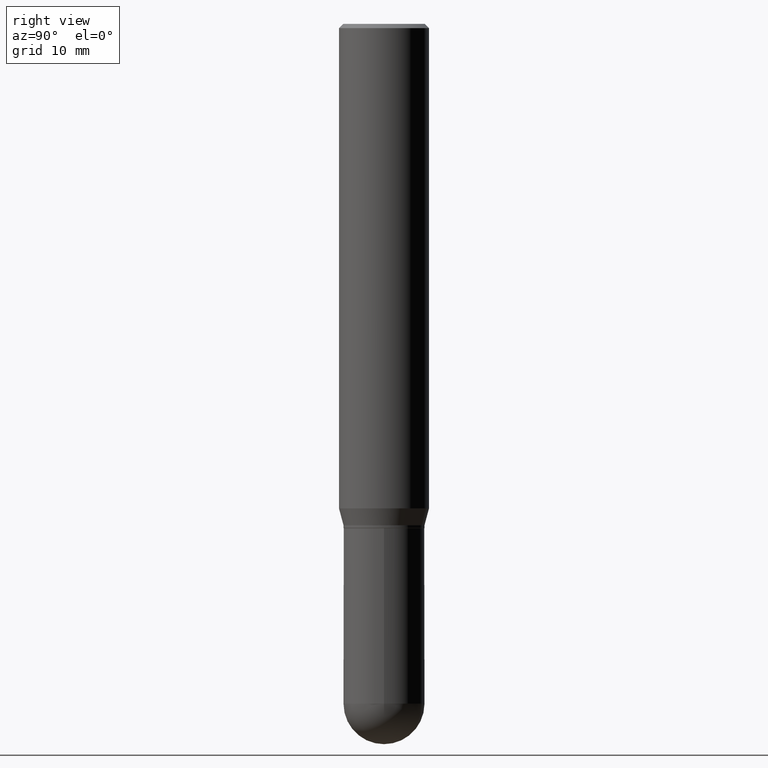
[diagram: clean part render]
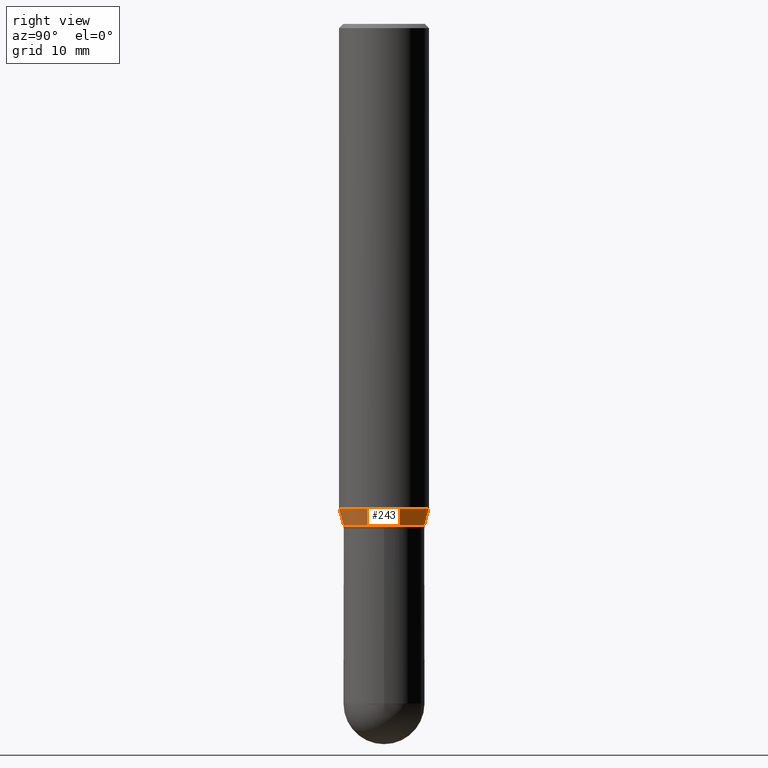
[diagram: same view with one face highlighted and labeled with its STEP entity id]
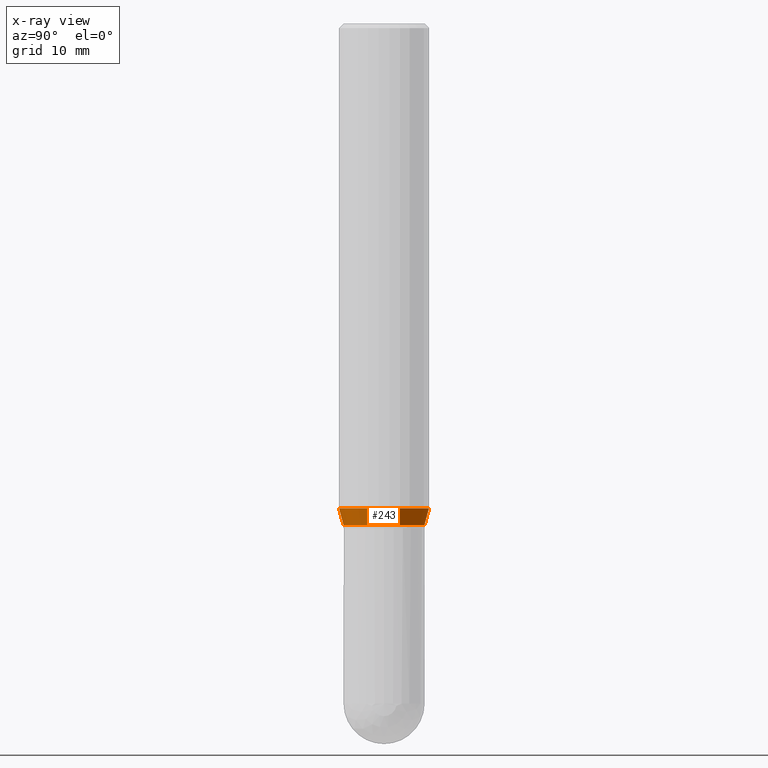
[diagram: x-ray of the same camera — body ghosted, the highlighted face saturated]
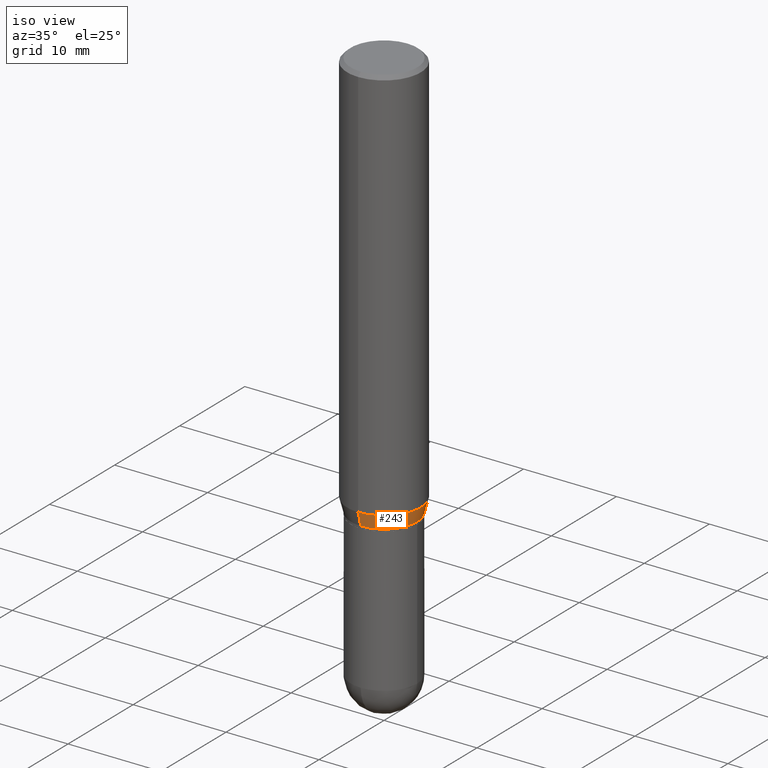
[diagram: same view with one face highlighted and labeled with its STEP entity id]
A machine part, right view. The second image highlights one B-rep face of the part: STEP entity #243.
The next image is the same camera in x-ray: the body ghosted, the highlighted face saturated — about 0% of this face is hidden behind the body in this view.
A second angle (iso view) of the same face is appended — the face is thin or edge-on in the first view.
In plain terms, the highlighted conical surface has half-angle 15 deg.
Its self-contained STEP definition (entity closure, byte-faithful):
#1 = DIRECTION ( 'NONE',  ( -2.445560966219159716E-29, 3.491349360429001039E-15, 1.000000000000000000 ) ) ;
#20 = CARTESIAN_POINT ( 'NONE',  ( -9.818045524826459157E-16, -0.1406000000000059980, -1.739999999999999547 ) ) ;
#23 = CARTESIAN_POINT ( 'NONE',  ( 4.255276081221338142E-29, -6.074947887146461556E-15, -1.739999999999999991 ) ) ;
#29 = FACE_OUTER_BOUND ( 'NONE', #327, .T. ) ;
#51 = DIRECTION ( 'NONE',  ( -6.982962677686266711E-15, -1.000000000000000000, 3.885985766236507752E-15 ) ) ;
#62 = VERTEX_POINT ( 'NONE', #218 ) ;
#64 = AXIS2_PLACEMENT_3D ( 'NONE', #390, #121, #259 ) ;
#66 = VECTOR ( 'NONE', #331, 39.37007874015748143 ) ;
#67 = CARTESIAN_POINT ( 'NONE',  ( 9.990230864787428877E-16, 0.1405999999999938410, -1.740000000000000657 ) ) ;
#89 = CARTESIAN_POINT ( 'NONE',  ( -9.818045524826459157E-16, -0.1406000000000059980, -1.739999999999999547 ) ) ;
#92 = EDGE_CURVE ( 'NONE', #263, #391, #142, .T. ) ;
#101 = VECTOR ( 'NONE', #435, 39.37007874015748143 ) ;
#105 = ORIENTED_EDGE ( 'NONE', *, *, #478, .F. ) ;
#121 = DIRECTION ( 'NONE',  ( -2.445560966219159716E-29, 3.491349360429001039E-15, 1.000000000000000000 ) ) ;
#142 = CIRCLE ( 'NONE', #64, 0.1405999999999999195 ) ;
#155 = ORIENTED_EDGE ( 'NONE', *, *, #92, .T. ) ;
#173 = CIRCLE ( 'NONE', #461, 0.1562500000000000000 ) ;
#181 = CONICAL_SURFACE ( 'NONE', #377, 0.1405999999999999195, 0.2617993877991497964 ) ;
#194 = DIRECTION ( 'NONE',  ( -6.982962677686265133E-15, -1.000000000000000000, 3.496765431890256920E-15 ) ) ;
#201 = LINE ( 'NONE', #67, #66 ) ;
#218 = CARTESIAN_POINT ( 'NONE',  ( -1.091087918388437956E-15, -0.1562500000000058842, -1.681593404861546404 ) ) ;
#228 = EDGE_CURVE ( 'NONE', #391, #381, #201, .T. ) ;
#229 = CARTESIAN_POINT ( 'NONE',  ( 1.054623055551970126E-15, 0.1405999999999938410, -1.740000000000000657 ) ) ;
#243 = ADVANCED_FACE ( 'NONE', ( #29 ), #181, .T. ) ;
#244 = LINE ( 'NONE', #20, #101 ) ;
#251 = ORIENTED_EDGE ( 'NONE', *, *, #338, .F. ) ;
#259 = DIRECTION ( 'NONE',  ( -6.982962677686266711E-15, -1.000000000000000000, 3.885985766236507752E-15 ) ) ;
#263 = VERTEX_POINT ( 'NONE', #89 ) ;
#327 = EDGE_LOOP ( 'NONE', ( #155, #448, #105, #251 ) ) ;
#331 = DIRECTION ( 'NONE',  ( 1.839019923739597160E-15, 0.2588190451025245142, 0.9659258262890673130 ) ) ;
#338 = EDGE_CURVE ( 'NONE', #263, #62, #244, .T. ) ;
#377 = AXIS2_PLACEMENT_3D ( 'NONE', #23, #474, #51 ) ;
#381 = VERTEX_POINT ( 'NONE', #385 ) ;
#385 = CARTESIAN_POINT ( 'NONE',  ( 1.110223024625197561E-15, 0.1562499999999941436, -1.681593404861547514 ) ) ;
#390 = CARTESIAN_POINT ( 'NONE',  ( 4.255276081221338142E-29, -6.074947887146461556E-15, -1.739999999999999991 ) ) ;
#391 = VERTEX_POINT ( 'NONE', #229 ) ;
#435 = DIRECTION ( 'NONE',  ( -1.807323732225326984E-15, -0.2588190451025177419, 0.9659258262890690894 ) ) ;
#448 = ORIENTED_EDGE ( 'NONE', *, *, #228, .T. ) ;
#461 = AXIS2_PLACEMENT_3D ( 'NONE', #475, #1, #194 ) ;
#474 = DIRECTION ( 'NONE',  ( -2.445560966219159716E-29, 3.491349360429001039E-15, 1.000000000000000000 ) ) ;
#475 = CARTESIAN_POINT ( 'NONE',  ( 4.112439191980971805E-29, -5.871030058564987327E-15, -1.681593404861546848 ) ) ;
#478 = EDGE_CURVE ( 'NONE', #62, #381, #173, .T. ) ;